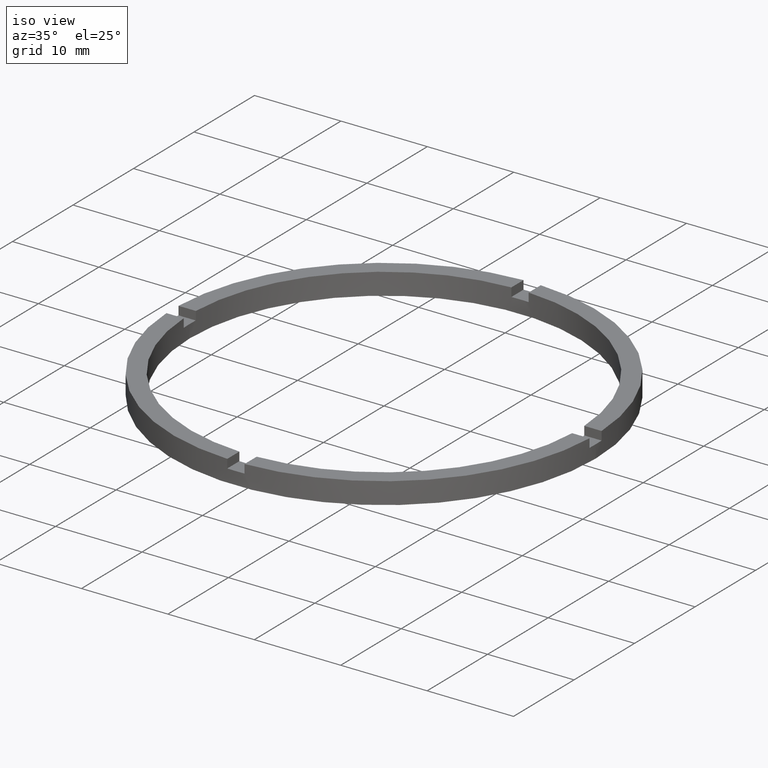
[diagram: clean part render]
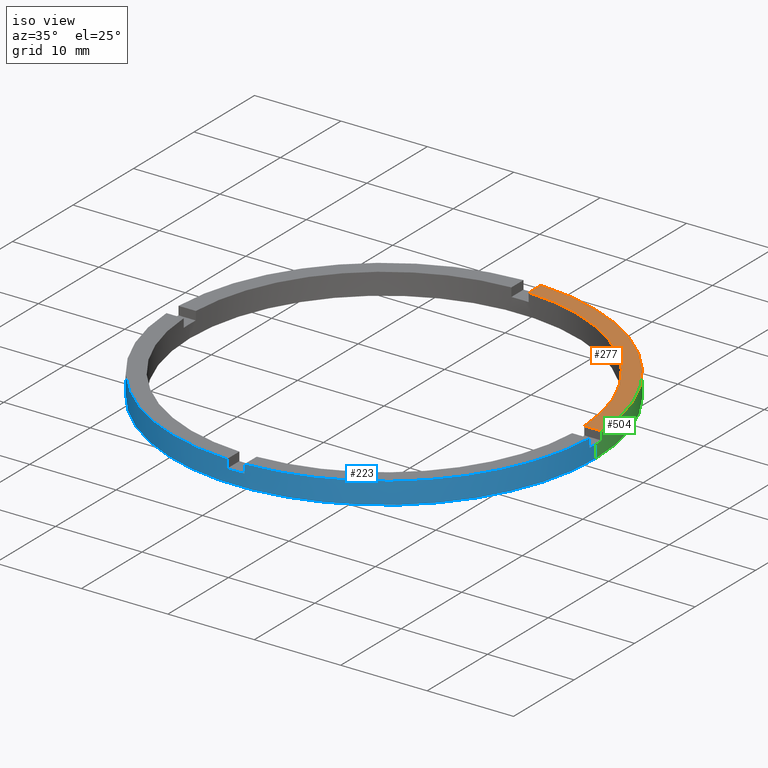
[diagram: same view with three faces highlighted in distinct colors, each labeled with its STEP entity id]
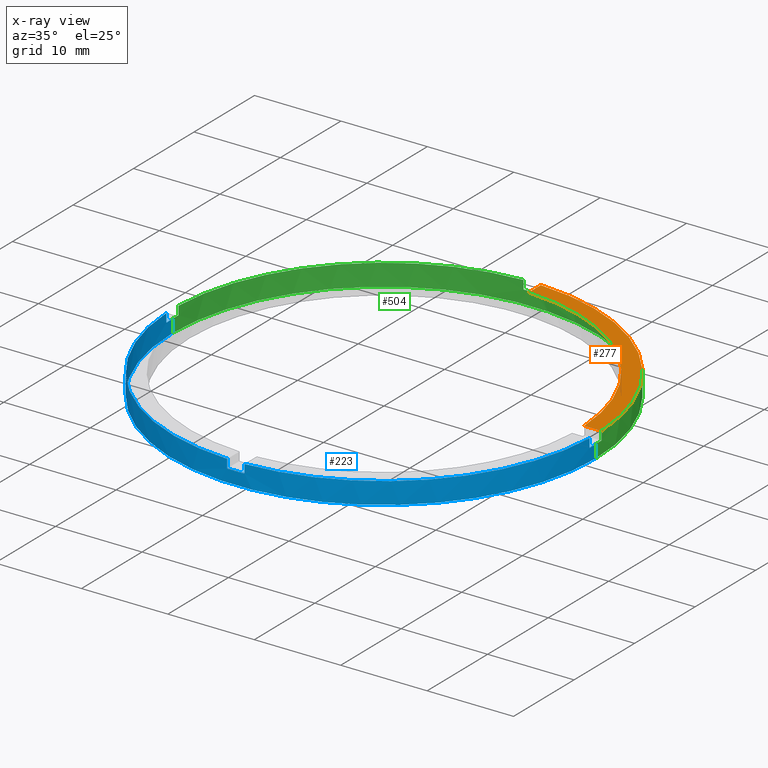
[diagram: x-ray of the same camera — body ghosted, the three highlighted faces saturated]
A machine part, iso view with three faces highlighted in distinct colors.
The next image is the same camera in x-ray (body ghosted, the three faces saturated) — at least one of them is partly hidden behind the body in this view.
Their STEP definitions:

[orange] entity #277 — the highlighted planar face has unit normal (0, 0, 1).
#65 = DIRECTION ( 'NONE',  ( 0.000000000000000000, 1.000000000000000000, 0.000000000000000000 ) ) ;
#118 = CARTESIAN_POINT ( 'NONE',  ( 0.9999999999999740208, 14.50000000000000000, 2.500000000000000000 ) ) ;
#140 = FACE_OUTER_BOUND ( 'NONE', #540, .T. ) ;
#162 = VECTOR ( 'NONE', #489, 1000.000000000000000 ) ;
#177 = CARTESIAN_POINT ( 'NONE',  ( 0.000000000000000000, 0.000000000000000000, 2.500000000000000000 ) ) ;
#181 = EDGE_CURVE ( 'NONE', #274, #263, #406, .T. ) ;
#198 = CIRCLE ( 'NONE', #673, 22.50000000000000355 ) ;
#201 = ORIENTED_EDGE ( 'NONE', *, *, #181, .F. ) ;
#228 = CARTESIAN_POINT ( 'NONE',  ( 0.000000000000000000, 0.000000000000000000, 2.500000000000000000 ) ) ;
#263 = VERTEX_POINT ( 'NONE', #330 ) ;
#274 = VERTEX_POINT ( 'NONE', #748 ) ;
#277 = ADVANCED_FACE ( 'NONE', ( #140 ), #492, .T. ) ;
#290 = DIRECTION ( 'NONE',  ( 1.000000000000000000, 0.000000000000000000, 0.000000000000000000 ) ) ;
#295 = CARTESIAN_POINT ( 'NONE',  ( 14.49999999999999467, 0.9999999999998419042, 2.500000000000000000 ) ) ;
#326 = EDGE_CURVE ( 'NONE', #543, #343, #664, .T. ) ;
#330 = CARTESIAN_POINT ( 'NONE',  ( 0.9999999999999740208, 24.47958332978729601, 2.500000000000000000 ) ) ;
#336 = CARTESIAN_POINT ( 'NONE',  ( 24.47958332978729956, 0.9999999999998423483, 2.500000000000000000 ) ) ;
#343 = VERTEX_POINT ( 'NONE', #712 ) ;
#384 = AXIS2_PLACEMENT_3D ( 'NONE', #177, #581, #485 ) ;
#406 = LINE ( 'NONE', #118, #655 ) ;
#450 = ORIENTED_EDGE ( 'NONE', *, *, #556, .T. ) ;
#473 = DIRECTION ( 'NONE',  ( 0.000000000000000000, 0.000000000000000000, 1.000000000000000000 ) ) ;
#485 = DIRECTION ( 'NONE',  ( 1.000000000000000000, 0.000000000000000000, -0.000000000000000000 ) ) ;
#489 = DIRECTION ( 'NONE',  ( -1.000000000000000000, -4.336808689942018352E-17, -0.000000000000000000 ) ) ;
#492 = PLANE ( 'NONE',  #384 ) ;
#515 = EDGE_CURVE ( 'NONE', #343, #274, #198, .T. ) ;
#517 = ORIENTED_EDGE ( 'NONE', *, *, #326, .F. ) ;
#525 = ORIENTED_EDGE ( 'NONE', *, *, #515, .F. ) ;
#540 = EDGE_LOOP ( 'NONE', ( #201, #525, #517, #450 ) ) ;
#543 = VERTEX_POINT ( 'NONE', #336 ) ;
#550 = AXIS2_PLACEMENT_3D ( 'NONE', #228, #723, #290 ) ;
#556 = EDGE_CURVE ( 'NONE', #543, #263, #715, .T. ) ;
#581 = DIRECTION ( 'NONE',  ( 0.000000000000000000, 0.000000000000000000, 1.000000000000000000 ) ) ;
#609 = DIRECTION ( 'NONE',  ( 1.000000000000000000, 0.000000000000000000, 0.000000000000000000 ) ) ;
#655 = VECTOR ( 'NONE', #65, 1000.000000000000000 ) ;
#664 = LINE ( 'NONE', #295, #162 ) ;
#673 = AXIS2_PLACEMENT_3D ( 'NONE', #753, #473, #609 ) ;
#712 = CARTESIAN_POINT ( 'NONE',  ( 22.47776679298903346, 0.9999999999998421263, 2.500000000000000000 ) ) ;
#715 = CIRCLE ( 'NONE', #550, 24.50000000000000000 ) ;
#723 = DIRECTION ( 'NONE',  ( 0.000000000000000000, 0.000000000000000000, 1.000000000000000000 ) ) ;
#748 = CARTESIAN_POINT ( 'NONE',  ( 0.9999999999999740208, 22.47776679298902636, 2.500000000000000000 ) ) ;
#753 = CARTESIAN_POINT ( 'NONE',  ( 0.000000000000000000, 0.000000000000000000, 2.500000000000000000 ) ) ;

[blue] entity #223 — the highlighted cylindrical surface (partial cylindrical patch) has radius 24.5 mm, axis along (-0, -0, -1).
#22 = CARTESIAN_POINT ( 'NONE',  ( 0.000000000000000000, 0.000000000000000000, 2.500000000000000000 ) ) ;
#25 = AXIS2_PLACEMENT_3D ( 'NONE', #305, #554, #57 ) ;
#38 = CARTESIAN_POINT ( 'NONE',  ( -24.50000000000000000, 0.000000000000000000, 2.500000000000000000 ) ) ;
#44 = ORIENTED_EDGE ( 'NONE', *, *, #194, .T. ) ;
#57 = DIRECTION ( 'NONE',  ( 1.000000000000000000, 0.000000000000000000, 0.000000000000000000 ) ) ;
#63 = EDGE_CURVE ( 'NONE', #275, #731, #389, .T. ) ;
#69 = DIRECTION ( 'NONE',  ( -0.000000000000000000, 0.000000000000000000, 1.000000000000000000 ) ) ;
#74 = CARTESIAN_POINT ( 'NONE',  ( 0.000000000000000000, 0.000000000000000000, 0.000000000000000000 ) ) ;
#112 = VERTEX_POINT ( 'NONE', #602 ) ;
#116 = CARTESIAN_POINT ( 'NONE',  ( -1.000000000000160760, -24.47958332978728890, 2.500000000000000000 ) ) ;
#119 = EDGE_CURVE ( 'NONE', #624, #533, #410, .T. ) ;
#131 = FACE_OUTER_BOUND ( 'NONE', #630, .T. ) ;
#132 = CARTESIAN_POINT ( 'NONE',  ( 24.50000000000000000, 3.000384657911015469E-15, 1.500000000000000000 ) ) ;
#137 = CARTESIAN_POINT ( 'NONE',  ( -1.000000000000160760, -24.47958332978728890, 2.500000000000000000 ) ) ;
#138 = EDGE_CURVE ( 'NONE', #607, #782, #418, .T. ) ;
#139 = LINE ( 'NONE', #479, #670 ) ;
#146 = VECTOR ( 'NONE', #584, 1000.000000000000000 ) ;
#149 = CIRCLE ( 'NONE', #25, 24.50000000000000000 ) ;
#150 = VECTOR ( 'NONE', #758, 1000.000000000000000 ) ;
#155 = DIRECTION ( 'NONE',  ( 0.000000000000000000, 0.000000000000000000, 1.000000000000000000 ) ) ;
#158 = CIRCLE ( 'NONE', #251, 24.50000000000000000 ) ;
#163 = EDGE_CURVE ( 'NONE', #328, #621, #149, .T. ) ;
#165 = AXIS2_PLACEMENT_3D ( 'NONE', #22, #262, #311 ) ;
#169 = CIRCLE ( 'NONE', #742, 24.50000000000000000 ) ;
#194 = EDGE_CURVE ( 'NONE', #624, #621, #649, .T. ) ;
#206 = EDGE_CURVE ( 'NONE', #242, #717, #139, .T. ) ;
#217 = AXIS2_PLACEMENT_3D ( 'NONE', #557, #597, #750 ) ;
#223 = ADVANCED_FACE ( 'NONE', ( #131 ), #680, .T. ) ;
#240 = EDGE_CURVE ( 'NONE', #112, #782, #392, .T. ) ;
#242 = VERTEX_POINT ( 'NONE', #132 ) ;
#243 = ORIENTED_EDGE ( 'NONE', *, *, #509, .T. ) ;
#251 = AXIS2_PLACEMENT_3D ( 'NONE', #648, #306, #552 ) ;
#254 = EDGE_CURVE ( 'NONE', #607, #242, #158, .T. ) ;
#259 = DIRECTION ( 'NONE',  ( 0.000000000000000000, 0.000000000000000000, 1.000000000000000000 ) ) ;
#262 = DIRECTION ( 'NONE',  ( 0.000000000000000000, 0.000000000000000000, 1.000000000000000000 ) ) ;
#275 = VERTEX_POINT ( 'NONE', #657 ) ;
#279 = VERTEX_POINT ( 'NONE', #591 ) ;
#289 = DIRECTION ( 'NONE',  ( -0.000000000000000000, -0.000000000000000000, -1.000000000000000000 ) ) ;
#305 = CARTESIAN_POINT ( 'NONE',  ( 0.000000000000000000, 0.000000000000000000, 2.500000000000000000 ) ) ;
#306 = DIRECTION ( 'NONE',  ( 0.000000000000000000, 0.000000000000000000, 1.000000000000000000 ) ) ;
#309 = CARTESIAN_POINT ( 'NONE',  ( -24.47958332978729601, -1.000000000000025757, 1.500000000000000000 ) ) ;
#310 = ORIENTED_EDGE ( 'NONE', *, *, #337, .T. ) ;
#311 = DIRECTION ( 'NONE',  ( 1.000000000000000000, 0.000000000000000000, 0.000000000000000000 ) ) ;
#317 = DIRECTION ( 'NONE',  ( 1.000000000000000000, 0.000000000000000000, 0.000000000000000000 ) ) ;
#328 = VERTEX_POINT ( 'NONE', #737 ) ;
#332 = CARTESIAN_POINT ( 'NONE',  ( 0.9999999999998393507, -24.47958332978729956, 1.500000000000000000 ) ) ;
#337 = EDGE_CURVE ( 'NONE', #275, #279, #401, .T. ) ;
#349 = ORIENTED_EDGE ( 'NONE', *, *, #138, .T. ) ;
#366 = ORIENTED_EDGE ( 'NONE', *, *, #386, .T. ) ;
#386 = EDGE_CURVE ( 'NONE', #112, #533, #669, .T. ) ;
#389 = CIRCLE ( 'NONE', #558, 24.50000000000000000 ) ;
#392 = CIRCLE ( 'NONE', #165, 24.50000000000000000 ) ;
#401 = LINE ( 'NONE', #38, #414 ) ;
#410 = CIRCLE ( 'NONE', #696, 24.50000000000000000 ) ;
#414 = VECTOR ( 'NONE', #289, 1000.000000000000000 ) ;
#418 = LINE ( 'NONE', #588, #146 ) ;
#427 = VECTOR ( 'NONE', #667, 1000.000000000000000 ) ;
#479 = CARTESIAN_POINT ( 'NONE',  ( 24.50000000000000000, 3.000384657911015469E-15, 2.500000000000000000 ) ) ;
#487 = EDGE_CURVE ( 'NONE', #279, #717, #169, .T. ) ;
#501 = ORIENTED_EDGE ( 'NONE', *, *, #163, .F. ) ;
#505 = ORIENTED_EDGE ( 'NONE', *, *, #487, .T. ) ;
#508 = ORIENTED_EDGE ( 'NONE', *, *, #206, .F. ) ;
#509 = EDGE_CURVE ( 'NONE', #328, #731, #695, .T. ) ;
#523 = CARTESIAN_POINT ( 'NONE',  ( 0.9999999999998393507, -24.47958332978729956, 2.500000000000000000 ) ) ;
#526 = CARTESIAN_POINT ( 'NONE',  ( -1.000000000000160760, -24.47958332978728890, 1.500000000000000000 ) ) ;
#533 = VERTEX_POINT ( 'NONE', #332 ) ;
#552 = DIRECTION ( 'NONE',  ( 1.000000000000000000, 0.000000000000000000, 0.000000000000000000 ) ) ;
#554 = DIRECTION ( 'NONE',  ( 0.000000000000000000, 0.000000000000000000, 1.000000000000000000 ) ) ;
#557 = CARTESIAN_POINT ( 'NONE',  ( 0.000000000000000000, 0.000000000000000000, 2.500000000000000000 ) ) ;
#558 = AXIS2_PLACEMENT_3D ( 'NONE', #672, #259, #317 ) ;
#559 = DIRECTION ( 'NONE',  ( 1.000000000000000000, 0.000000000000000000, 0.000000000000000000 ) ) ;
#560 = CARTESIAN_POINT ( 'NONE',  ( -24.47958332978729601, -1.000000000000025757, 2.500000000000000000 ) ) ;
#561 = CARTESIAN_POINT ( 'NONE',  ( 24.47958332978728890, -1.000000000000157652, 2.500000000000000000 ) ) ;
#562 = ORIENTED_EDGE ( 'NONE', *, *, #240, .F. ) ;
#566 = ORIENTED_EDGE ( 'NONE', *, *, #119, .F. ) ;
#570 = DIRECTION ( 'NONE',  ( -0.000000000000000000, -0.000000000000000000, -1.000000000000000000 ) ) ;
#584 = DIRECTION ( 'NONE',  ( 0.000000000000000000, 0.000000000000000000, 1.000000000000000000 ) ) ;
#588 = CARTESIAN_POINT ( 'NONE',  ( 24.47958332978728890, -1.000000000000157652, 2.500000000000000000 ) ) ;
#591 = CARTESIAN_POINT ( 'NONE',  ( -24.50000000000000000, 0.000000000000000000, 0.000000000000000000 ) ) ;
#597 = DIRECTION ( 'NONE',  ( -0.000000000000000000, -0.000000000000000000, -1.000000000000000000 ) ) ;
#602 = CARTESIAN_POINT ( 'NONE',  ( 0.9999999999998393507, -24.47958332978729956, 2.500000000000000000 ) ) ;
#607 = VERTEX_POINT ( 'NONE', #629 ) ;
#608 = DIRECTION ( 'NONE',  ( -0.000000000000000000, -0.000000000000000000, -1.000000000000000000 ) ) ;
#621 = VERTEX_POINT ( 'NONE', #116 ) ;
#624 = VERTEX_POINT ( 'NONE', #526 ) ;
#629 = CARTESIAN_POINT ( 'NONE',  ( 24.47958332978728890, -1.000000000000157652, 1.500000000000000000 ) ) ;
#630 = EDGE_LOOP ( 'NONE', ( #508, #772, #349, #562, #366, #566, #44, #501, #243, #634, #310, #505 ) ) ;
#634 = ORIENTED_EDGE ( 'NONE', *, *, #63, .F. ) ;
#648 = CARTESIAN_POINT ( 'NONE',  ( 0.000000000000000000, 0.000000000000000000, 1.500000000000000000 ) ) ;
#649 = LINE ( 'NONE', #137, #150 ) ;
#657 = CARTESIAN_POINT ( 'NONE',  ( -24.50000000000000000, 0.000000000000000000, 1.500000000000000000 ) ) ;
#667 = DIRECTION ( 'NONE',  ( -0.000000000000000000, -0.000000000000000000, -1.000000000000000000 ) ) ;
#669 = LINE ( 'NONE', #523, #678 ) ;
#670 = VECTOR ( 'NONE', #608, 1000.000000000000000 ) ;
#672 = CARTESIAN_POINT ( 'NONE',  ( 0.000000000000000000, 0.000000000000000000, 1.500000000000000000 ) ) ;
#678 = VECTOR ( 'NONE', #570, 1000.000000000000000 ) ;
#680 = CYLINDRICAL_SURFACE ( 'NONE', #217, 24.50000000000000000 ) ;
#692 = CARTESIAN_POINT ( 'NONE',  ( 0.000000000000000000, 0.000000000000000000, 1.500000000000000000 ) ) ;
#695 = LINE ( 'NONE', #560, #427 ) ;
#696 = AXIS2_PLACEMENT_3D ( 'NONE', #692, #69, #559 ) ;
#717 = VERTEX_POINT ( 'NONE', #756 ) ;
#731 = VERTEX_POINT ( 'NONE', #309 ) ;
#737 = CARTESIAN_POINT ( 'NONE',  ( -24.47958332978729601, -1.000000000000025757, 2.500000000000000000 ) ) ;
#742 = AXIS2_PLACEMENT_3D ( 'NONE', #74, #155, #747 ) ;
#747 = DIRECTION ( 'NONE',  ( 1.000000000000000000, 0.000000000000000000, 0.000000000000000000 ) ) ;
#750 = DIRECTION ( 'NONE',  ( -1.000000000000000000, 0.000000000000000000, 0.000000000000000000 ) ) ;
#756 = CARTESIAN_POINT ( 'NONE',  ( 24.50000000000000000, 3.000384657911015469E-15, 0.000000000000000000 ) ) ;
#758 = DIRECTION ( 'NONE',  ( 0.000000000000000000, 0.000000000000000000, 1.000000000000000000 ) ) ;
#772 = ORIENTED_EDGE ( 'NONE', *, *, #254, .F. ) ;
#782 = VERTEX_POINT ( 'NONE', #561 ) ;

[green] entity #504 — the highlighted cylindrical surface (partial cylindrical patch) has radius 24.5 mm, axis along (-0, -0, -1).
#2 = CARTESIAN_POINT ( 'NONE',  ( 0.000000000000000000, 0.000000000000000000, 1.500000000000000000 ) ) ;
#4 = ORIENTED_EDGE ( 'NONE', *, *, #556, .F. ) ;
#10 = AXIS2_PLACEMENT_3D ( 'NONE', #82, #397, #528 ) ;
#19 = ORIENTED_EDGE ( 'NONE', *, *, #308, .T. ) ;
#31 = EDGE_CURVE ( 'NONE', #284, #263, #360, .T. ) ;
#33 = CARTESIAN_POINT ( 'NONE',  ( -1.000000000000025979, 24.47958332978729601, 1.500000000000000000 ) ) ;
#34 = AXIS2_PLACEMENT_3D ( 'NONE', #488, #647, #170 ) ;
#38 = CARTESIAN_POINT ( 'NONE',  ( -24.50000000000000000, 0.000000000000000000, 2.500000000000000000 ) ) ;
#46 = EDGE_CURVE ( 'NONE', #542, #275, #618, .T. ) ;
#82 = CARTESIAN_POINT ( 'NONE',  ( 0.000000000000000000, 0.000000000000000000, 0.000000000000000000 ) ) ;
#86 = EDGE_LOOP ( 'NONE', ( #734, #718, #99, #210, #535, #205, #728, #19, #615, #93, #4, #341 ) ) ;
#93 = ORIENTED_EDGE ( 'NONE', *, *, #31, .T. ) ;
#99 = ORIENTED_EDGE ( 'NONE', *, *, #568, .T. ) ;
#126 = VECTOR ( 'NONE', #231, 1000.000000000000000 ) ;
#132 = CARTESIAN_POINT ( 'NONE',  ( 24.50000000000000000, 3.000384657911015469E-15, 1.500000000000000000 ) ) ;
#139 = LINE ( 'NONE', #479, #670 ) ;
#141 = VECTOR ( 'NONE', #413, 1000.000000000000000 ) ;
#144 = DIRECTION ( 'NONE',  ( -0.000000000000000000, -0.000000000000000000, -1.000000000000000000 ) ) ;
#159 = VECTOR ( 'NONE', #238, 1000.000000000000000 ) ;
#161 = LINE ( 'NONE', #345, #126 ) ;
#164 = CIRCLE ( 'NONE', #10, 24.50000000000000000 ) ;
#170 = DIRECTION ( 'NONE',  ( 1.000000000000000000, 0.000000000000000000, 0.000000000000000000 ) ) ;
#173 = CYLINDRICAL_SURFACE ( 'NONE', #437, 24.50000000000000000 ) ;
#174 = CIRCLE ( 'NONE', #391, 24.50000000000000000 ) ;
#180 = DIRECTION ( 'NONE',  ( 0.000000000000000000, 0.000000000000000000, 1.000000000000000000 ) ) ;
#183 = CIRCLE ( 'NONE', #34, 24.50000000000000000 ) ;
#199 = VERTEX_POINT ( 'NONE', #33 ) ;
#205 = ORIENTED_EDGE ( 'NONE', *, *, #393, .T. ) ;
#206 = EDGE_CURVE ( 'NONE', #242, #717, #139, .T. ) ;
#210 = ORIENTED_EDGE ( 'NONE', *, *, #337, .F. ) ;
#228 = CARTESIAN_POINT ( 'NONE',  ( 0.000000000000000000, 0.000000000000000000, 2.500000000000000000 ) ) ;
#231 = DIRECTION ( 'NONE',  ( -0.000000000000000000, -0.000000000000000000, -1.000000000000000000 ) ) ;
#233 = DIRECTION ( 'NONE',  ( 1.000000000000000000, 0.000000000000000000, 0.000000000000000000 ) ) ;
#236 = CARTESIAN_POINT ( 'NONE',  ( 0.9999999999999740208, 24.47958332978729601, 1.500000000000000000 ) ) ;
#238 = DIRECTION ( 'NONE',  ( 0.000000000000000000, 0.000000000000000000, 1.000000000000000000 ) ) ;
#239 = DIRECTION ( 'NONE',  ( 0.000000000000000000, 0.000000000000000000, 1.000000000000000000 ) ) ;
#242 = VERTEX_POINT ( 'NONE', #132 ) ;
#244 = CARTESIAN_POINT ( 'NONE',  ( -1.000000000000025979, 24.47958332978729601, 2.500000000000000000 ) ) ;
#263 = VERTEX_POINT ( 'NONE', #330 ) ;
#275 = VERTEX_POINT ( 'NONE', #657 ) ;
#279 = VERTEX_POINT ( 'NONE', #591 ) ;
#284 = VERTEX_POINT ( 'NONE', #236 ) ;
#289 = DIRECTION ( 'NONE',  ( -0.000000000000000000, -0.000000000000000000, -1.000000000000000000 ) ) ;
#290 = DIRECTION ( 'NONE',  ( 1.000000000000000000, 0.000000000000000000, 0.000000000000000000 ) ) ;
#297 = CARTESIAN_POINT ( 'NONE',  ( -24.47958332978729601, 0.9999999999999742428, 1.500000000000000000 ) ) ;
#308 = EDGE_CURVE ( 'NONE', #519, #199, #644, .T. ) ;
#315 = CARTESIAN_POINT ( 'NONE',  ( 0.000000000000000000, 0.000000000000000000, 2.500000000000000000 ) ) ;
#319 = AXIS2_PLACEMENT_3D ( 'NONE', #490, #419, #547 ) ;
#324 = EDGE_CURVE ( 'NONE', #543, #351, #161, .T. ) ;
#330 = CARTESIAN_POINT ( 'NONE',  ( 0.9999999999999740208, 24.47958332978729601, 2.500000000000000000 ) ) ;
#336 = CARTESIAN_POINT ( 'NONE',  ( 24.47958332978729956, 0.9999999999998423483, 2.500000000000000000 ) ) ;
#337 = EDGE_CURVE ( 'NONE', #275, #279, #401, .T. ) ;
#341 = ORIENTED_EDGE ( 'NONE', *, *, #324, .T. ) ;
#345 = CARTESIAN_POINT ( 'NONE',  ( 24.47958332978729956, 0.9999999999998423483, 2.500000000000000000 ) ) ;
#351 = VERTEX_POINT ( 'NONE', #777 ) ;
#360 = LINE ( 'NONE', #755, #619 ) ;
#361 = DIRECTION ( 'NONE',  ( -1.000000000000000000, 0.000000000000000000, 0.000000000000000000 ) ) ;
#391 = AXIS2_PLACEMENT_3D ( 'NONE', #407, #180, #233 ) ;
#393 = EDGE_CURVE ( 'NONE', #542, #452, #674, .T. ) ;
#397 = DIRECTION ( 'NONE',  ( 0.000000000000000000, 0.000000000000000000, 1.000000000000000000 ) ) ;
#401 = LINE ( 'NONE', #38, #414 ) ;
#407 = CARTESIAN_POINT ( 'NONE',  ( 0.000000000000000000, 0.000000000000000000, 1.500000000000000000 ) ) ;
#413 = DIRECTION ( 'NONE',  ( -0.000000000000000000, -0.000000000000000000, -1.000000000000000000 ) ) ;
#414 = VECTOR ( 'NONE', #289, 1000.000000000000000 ) ;
#419 = DIRECTION ( 'NONE',  ( 0.000000000000000000, 0.000000000000000000, 1.000000000000000000 ) ) ;
#434 = CIRCLE ( 'NONE', #319, 24.50000000000000000 ) ;
#437 = AXIS2_PLACEMENT_3D ( 'NONE', #315, #144, #361 ) ;
#452 = VERTEX_POINT ( 'NONE', #640 ) ;
#479 = CARTESIAN_POINT ( 'NONE',  ( 24.50000000000000000, 3.000384657911015469E-15, 2.500000000000000000 ) ) ;
#488 = CARTESIAN_POINT ( 'NONE',  ( 0.000000000000000000, 0.000000000000000000, 1.500000000000000000 ) ) ;
#490 = CARTESIAN_POINT ( 'NONE',  ( 0.000000000000000000, 0.000000000000000000, 2.500000000000000000 ) ) ;
#504 = ADVANCED_FACE ( 'NONE', ( #693 ), #173, .T. ) ;
#519 = VERTEX_POINT ( 'NONE', #244 ) ;
#528 = DIRECTION ( 'NONE',  ( 1.000000000000000000, 0.000000000000000000, 0.000000000000000000 ) ) ;
#535 = ORIENTED_EDGE ( 'NONE', *, *, #46, .F. ) ;
#542 = VERTEX_POINT ( 'NONE', #297 ) ;
#543 = VERTEX_POINT ( 'NONE', #336 ) ;
#544 = EDGE_CURVE ( 'NONE', #519, #452, #434, .T. ) ;
#547 = DIRECTION ( 'NONE',  ( 1.000000000000000000, 0.000000000000000000, 0.000000000000000000 ) ) ;
#550 = AXIS2_PLACEMENT_3D ( 'NONE', #228, #723, #290 ) ;
#553 = EDGE_CURVE ( 'NONE', #284, #199, #183, .T. ) ;
#556 = EDGE_CURVE ( 'NONE', #543, #263, #715, .T. ) ;
#568 = EDGE_CURVE ( 'NONE', #717, #279, #164, .T. ) ;
#583 = EDGE_CURVE ( 'NONE', #242, #351, #174, .T. ) ;
#591 = CARTESIAN_POINT ( 'NONE',  ( -24.50000000000000000, 0.000000000000000000, 0.000000000000000000 ) ) ;
#592 = AXIS2_PLACEMENT_3D ( 'NONE', #2, #239, #598 ) ;
#598 = DIRECTION ( 'NONE',  ( 1.000000000000000000, 0.000000000000000000, 0.000000000000000000 ) ) ;
#608 = DIRECTION ( 'NONE',  ( -0.000000000000000000, -0.000000000000000000, -1.000000000000000000 ) ) ;
#615 = ORIENTED_EDGE ( 'NONE', *, *, #553, .F. ) ;
#618 = CIRCLE ( 'NONE', #592, 24.50000000000000000 ) ;
#619 = VECTOR ( 'NONE', #733, 1000.000000000000000 ) ;
#640 = CARTESIAN_POINT ( 'NONE',  ( -24.47958332978729601, 0.9999999999999742428, 2.500000000000000000 ) ) ;
#644 = LINE ( 'NONE', #745, #141 ) ;
#647 = DIRECTION ( 'NONE',  ( 0.000000000000000000, -0.000000000000000000, 1.000000000000000000 ) ) ;
#657 = CARTESIAN_POINT ( 'NONE',  ( -24.50000000000000000, 0.000000000000000000, 1.500000000000000000 ) ) ;
#670 = VECTOR ( 'NONE', #608, 1000.000000000000000 ) ;
#674 = LINE ( 'NONE', #774, #159 ) ;
#693 = FACE_OUTER_BOUND ( 'NONE', #86, .T. ) ;
#715 = CIRCLE ( 'NONE', #550, 24.50000000000000000 ) ;
#717 = VERTEX_POINT ( 'NONE', #756 ) ;
#718 = ORIENTED_EDGE ( 'NONE', *, *, #206, .T. ) ;
#723 = DIRECTION ( 'NONE',  ( 0.000000000000000000, 0.000000000000000000, 1.000000000000000000 ) ) ;
#728 = ORIENTED_EDGE ( 'NONE', *, *, #544, .F. ) ;
#733 = DIRECTION ( 'NONE',  ( 0.000000000000000000, 0.000000000000000000, 1.000000000000000000 ) ) ;
#734 = ORIENTED_EDGE ( 'NONE', *, *, #583, .F. ) ;
#745 = CARTESIAN_POINT ( 'NONE',  ( -1.000000000000025979, 24.47958332978729601, 2.500000000000000000 ) ) ;
#755 = CARTESIAN_POINT ( 'NONE',  ( 0.9999999999999740208, 24.47958332978729601, 2.500000000000000000 ) ) ;
#756 = CARTESIAN_POINT ( 'NONE',  ( 24.50000000000000000, 3.000384657911015469E-15, 0.000000000000000000 ) ) ;
#774 = CARTESIAN_POINT ( 'NONE',  ( -24.47958332978729601, 0.9999999999999742428, 2.500000000000000000 ) ) ;
#777 = CARTESIAN_POINT ( 'NONE',  ( 24.47958332978729956, 0.9999999999998423483, 1.500000000000000000 ) ) ;